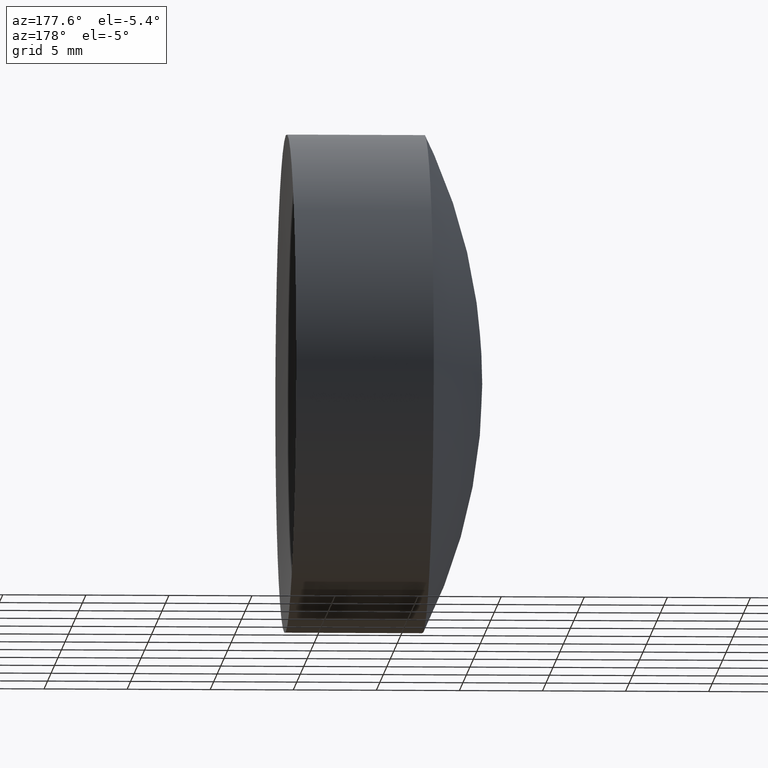
[diagram: clean part render]
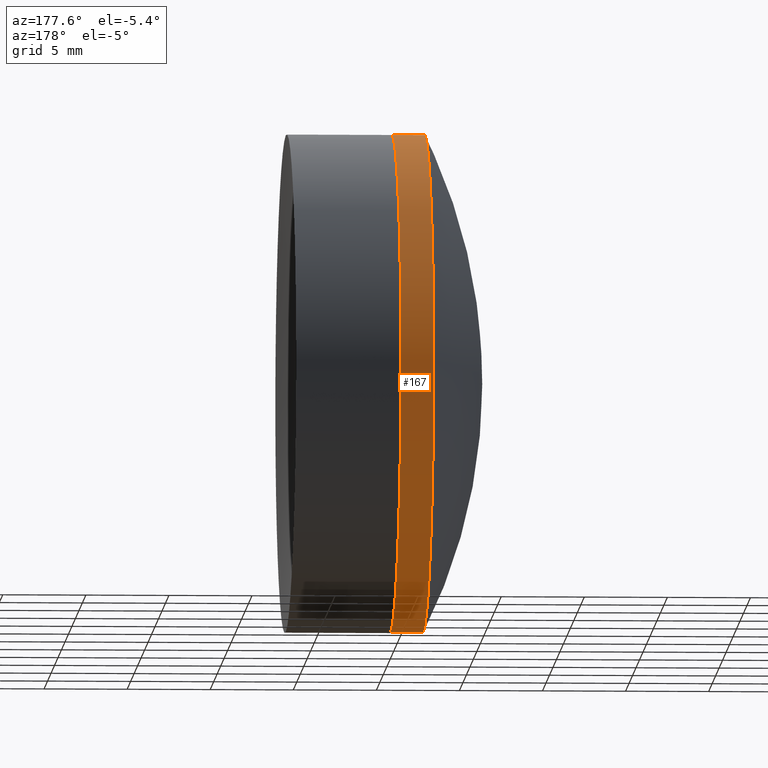
[diagram: same view with one face highlighted and labeled with its STEP entity id]
A machine part, auxiliary view. The second image highlights one B-rep face of the part: STEP entity #167.
In plain terms, the highlighted cylindrical surface (partial cylindrical patch) has radius 15 mm, axis along (-1, -0, -0).
Its self-contained STEP definition (entity closure, byte-faithful):
#14 = DIRECTION ( 'NONE',  ( -1.000000000000000000, -0.0000000000000000000, -0.0000000000000000000 ) ) ;
#26 = CARTESIAN_POINT ( 'NONE',  ( 98.43075223754873100, 1.836970198721029600E-015, -15.00000000000000500 ) ) ;
#32 = CARTESIAN_POINT ( 'NONE',  ( -0.8160621761658039000, 0.0000000000000000000, 0.0000000000000000000 ) ) ;
#43 = CYLINDRICAL_SURFACE ( 'NONE', #243, 14.99999999999999600 ) ;
#50 = AXIS2_PLACEMENT_3D ( 'NONE', #64, #290, #307 ) ;
#56 = EDGE_CURVE ( 'NONE', #250, #59, #269, .T. ) ;
#59 = VERTEX_POINT ( 'NONE', #26 ) ;
#64 = CARTESIAN_POINT ( 'NONE',  ( 98.43075223754873100, 0.0000000000000000000, 0.0000000000000000000 ) ) ;
#67 = ORIENTED_EDGE ( 'NONE', *, *, #56, .T. ) ;
#96 = CARTESIAN_POINT ( 'NONE',  ( 100.3989811747571700, 0.0000000000000000000, 0.0000000000000000000 ) ) ;
#100 = ORIENTED_EDGE ( 'NONE', *, *, #229, .T. ) ;
#107 = EDGE_CURVE ( 'NONE', #162, #59, #142, .T. ) ;
#123 = VECTOR ( 'NONE', #138, 1000.000000000000000 ) ;
#138 = DIRECTION ( 'NONE',  ( -1.000000000000000000, -0.0000000000000000000, -0.0000000000000000000 ) ) ;
#142 = CIRCLE ( 'NONE', #50, 14.99999999999999600 ) ;
#162 = VERTEX_POINT ( 'NONE', #306 ) ;
#165 = CARTESIAN_POINT ( 'NONE',  ( -0.8160621761658039000, 1.836970198721029200E-015, -14.99999999999999600 ) ) ;
#167 = ADVANCED_FACE ( 'NONE', ( #277 ), #43, .T. ) ;
#176 = VERTEX_POINT ( 'NONE', #315 ) ;
#177 = CIRCLE ( 'NONE', #316, 14.99999999999999800 ) ;
#196 = VECTOR ( 'NONE', #208, 1000.000000000000000 ) ;
#202 = CARTESIAN_POINT ( 'NONE',  ( 100.3989811747571700, 1.836970198721029600E-015, -15.00000000000000000 ) ) ;
#208 = DIRECTION ( 'NONE',  ( -1.000000000000000000, -0.0000000000000000000, -0.0000000000000000000 ) ) ;
#222 = EDGE_CURVE ( 'NONE', #176, #162, #248, .T. ) ;
#225 = DIRECTION ( 'NONE',  ( 0.0000000000000000000, 0.0000000000000000000, 1.000000000000000000 ) ) ;
#229 = EDGE_CURVE ( 'NONE', #176, #250, #177, .T. ) ;
#233 = CARTESIAN_POINT ( 'NONE',  ( -0.8160621761658039000, 0.0000000000000000000, 14.99999999999999600 ) ) ;
#243 = AXIS2_PLACEMENT_3D ( 'NONE', #32, #273, #318 ) ;
#248 = LINE ( 'NONE', #233, #196 ) ;
#250 = VERTEX_POINT ( 'NONE', #202 ) ;
#269 = LINE ( 'NONE', #165, #123 ) ;
#273 = DIRECTION ( 'NONE',  ( -1.000000000000000000, -0.0000000000000000000, -0.0000000000000000000 ) ) ;
#277 = FACE_OUTER_BOUND ( 'NONE', #300, .T. ) ;
#281 = ORIENTED_EDGE ( 'NONE', *, *, #107, .F. ) ;
#290 = DIRECTION ( 'NONE',  ( -1.000000000000000000, -0.0000000000000000000, -0.0000000000000000000 ) ) ;
#292 = ORIENTED_EDGE ( 'NONE', *, *, #222, .F. ) ;
#300 = EDGE_LOOP ( 'NONE', ( #100, #67, #281, #292 ) ) ;
#306 = CARTESIAN_POINT ( 'NONE',  ( 98.43075223754873100, 0.0000000000000000000, 15.00000000000000200 ) ) ;
#307 = DIRECTION ( 'NONE',  ( 0.0000000000000000000, 0.0000000000000000000, 1.000000000000000000 ) ) ;
#315 = CARTESIAN_POINT ( 'NONE',  ( 100.3989811747571700, 0.0000000000000000000, 14.99999999999999800 ) ) ;
#316 = AXIS2_PLACEMENT_3D ( 'NONE', #96, #14, #225 ) ;
#318 = DIRECTION ( 'NONE',  ( 0.0000000000000000000, 0.0000000000000000000, 1.000000000000000000 ) ) ;